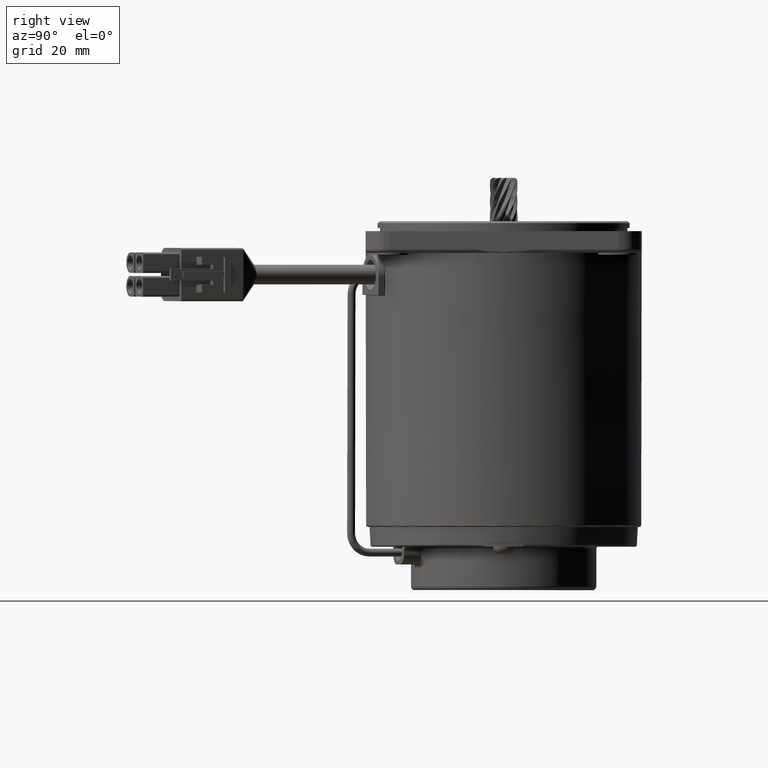
[diagram: clean part render]
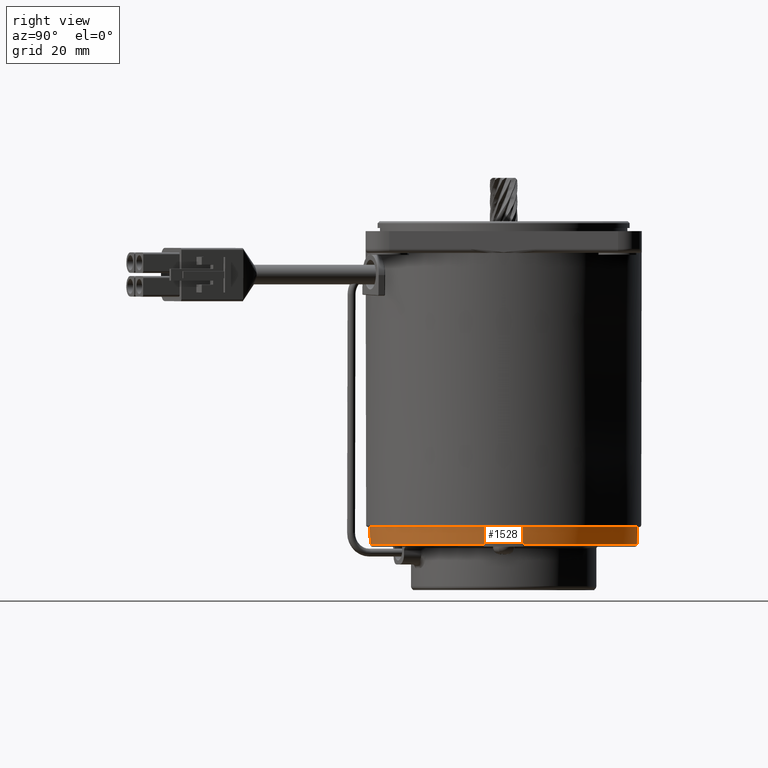
[diagram: same view with one face highlighted and labeled with its STEP entity id]
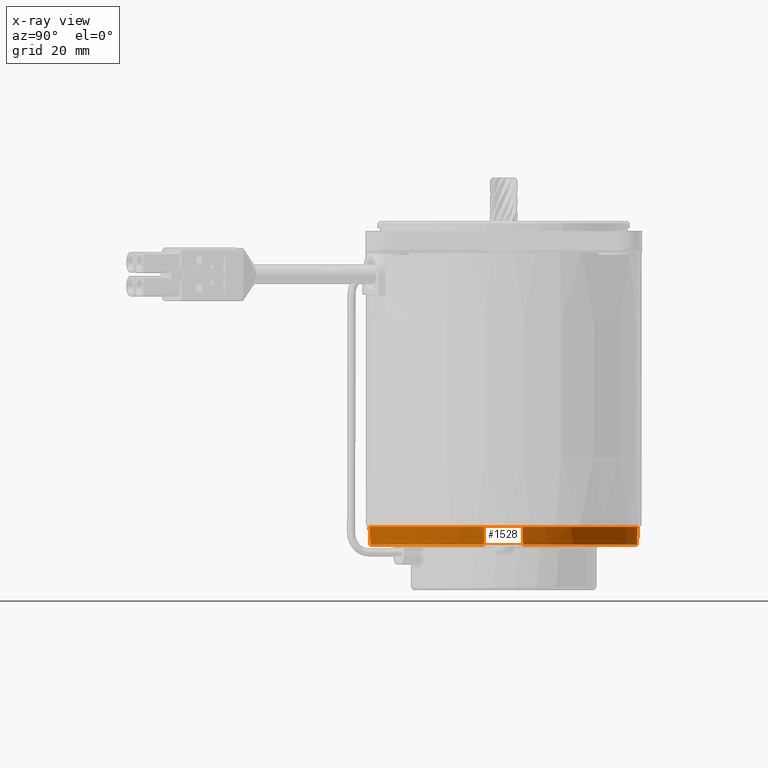
[diagram: x-ray of the same camera — body ghosted, the highlighted face saturated]
A machine part, right view. The second image highlights one B-rep face of the part: STEP entity #1528.
The next image is the same camera in x-ray: the body ghosted, the highlighted face saturated — about 0% of this face is hidden behind the body in this view.
In plain terms, the highlighted conical surface has half-angle 2.862 deg.
Its self-contained STEP definition (entity closure, byte-faithful):
#657 = VERTEX_POINT ( 'NONE', #7725 ) ;
#936 = VERTEX_POINT ( 'NONE', #8903 ) ;
#983 = EDGE_CURVE ( 'NONE', #984, #657, #9028, .T. ) ;
#984 = VERTEX_POINT ( 'NONE', #9029 ) ;
#999 = VERTEX_POINT ( 'NONE', #9046 ) ;
#1000 = EDGE_CURVE ( 'NONE', #936, #1002, #9043, .T. ) ;
#1002 = VERTEX_POINT ( 'NONE', #9024 ) ;
#1005 = EDGE_CURVE ( 'NONE', #657, #999, #9048, .T. ) ;
#1412 = EDGE_CURVE ( 'NONE', #1424, #1433, #9983, .T. ) ;
#1419 = EDGE_CURVE ( 'NONE', #936, #1424, #10020, .T. ) ;
#1424 = VERTEX_POINT ( 'NONE', #10014 ) ;
#1433 = VERTEX_POINT ( 'NONE', #9973 ) ;
#1466 = VERTEX_POINT ( 'NONE', #10051 ) ;
#1470 = EDGE_CURVE ( 'NONE', #1466, #984, #10041, .T. ) ;
#1503 = ORIENTED_EDGE ( 'NONE', *, *, #1005, .T. ) ;
#1507 = ORIENTED_EDGE ( 'NONE', *, *, #983, .T. ) ;
#1508 = EDGE_CURVE ( 'NONE', #1002, #999, #10126, .T. ) ;
#1510 = ORIENTED_EDGE ( 'NONE', *, *, #1508, .F. ) ;
#1516 = ORIENTED_EDGE ( 'NONE', *, *, #1470, .T. ) ;
#1518 = EDGE_LOOP ( 'NONE', ( #1530, #1522, #1529, #1521, #1516, #1507, #1503, #1510 ) ) ;
#1519 = EDGE_CURVE ( 'NONE', #1433, #1466, #10172, .T. ) ;
#1521 = ORIENTED_EDGE ( 'NONE', *, *, #1519, .T. ) ;
#1522 = ORIENTED_EDGE ( 'NONE', *, *, #1419, .T. ) ;
#1528 = ADVANCED_FACE ( 'NONE', ( #10111 ), #10170, .T. ) ;
#1529 = ORIENTED_EDGE ( 'NONE', *, *, #1412, .T. ) ;
#1530 = ORIENTED_EDGE ( 'NONE', *, *, #1000, .F. ) ;
#7725 = CARTESIAN_POINT ( 'NONE',  ( 33.77375155957640400, 0.0000000000000000000, -80.02496880847192500 ) ) ;
#8903 = CARTESIAN_POINT ( 'NONE',  ( -33.77375155957640400, 4.149945395682156800E-015, -80.02496880847192500 ) ) ;
#8999 = AXIS2_PLACEMENT_3D ( 'NONE', #9034, #9027, #9026 ) ;
#9024 = CARTESIAN_POINT ( 'NONE',  ( -33.99999999999997200, 4.163799117100998200E-015, -75.49999999999998600 ) ) ;
#9026 = DIRECTION ( 'NONE',  ( 1.000000000000000000, 0.0000000000000000000, 0.0000000000000000000 ) ) ;
#9027 = DIRECTION ( 'NONE',  ( -0.0000000000000000000, -0.0000000000000000000, 1.000000000000000000 ) ) ;
#9028 = CIRCLE ( 'NONE', #8999, 33.77375155957640400 ) ;
#9029 = CARTESIAN_POINT ( 'NONE',  ( 4.999999999999996400, -33.40159119574978100, -80.02496880847192500 ) ) ;
#9034 = CARTESIAN_POINT ( 'NONE',  ( 0.0000000000000000000, 0.0000000000000000000, -80.02496880847192500 ) ) ;
#9042 = CARTESIAN_POINT ( 'NONE',  ( -33.77375155957640400, 4.136091674263316900E-015, -80.02496880847192500 ) ) ;
#9043 = LINE ( 'NONE', #9042, #9097 ) ;
#9046 = CARTESIAN_POINT ( 'NONE',  ( 33.99999999999997200, 0.0000000000000000000, -75.49999999999998600 ) ) ;
#9047 = CARTESIAN_POINT ( 'NONE',  ( 33.77375155957640400, 0.0000000000000000000, -80.02496880847192500 ) ) ;
#9048 = LINE ( 'NONE', #9047, #9090 ) ;
#9089 = DIRECTION ( 'NONE',  ( 0.04993761694388643100, 0.0000000000000000000, 0.9987523388778449800 ) ) ;
#9090 = VECTOR ( 'NONE', #9089, 1000.000000000000000 ) ;
#9096 = DIRECTION ( 'NONE',  ( -0.04993761694388643100, 6.115594274737715200E-018, 0.9987523388778449800 ) ) ;
#9097 = VECTOR ( 'NONE', #9096, 1000.000000000000000 ) ;
#9973 = CARTESIAN_POINT ( 'NONE',  ( -5.000000000000003600, -33.42813186524188800, -79.49999999999998600 ) ) ;
#9974 = CARTESIAN_POINT ( 'NONE',  ( -5.000000000000003600, -33.42813186524188800, -79.49999999999998600 ) ) ;
#9975 = CARTESIAN_POINT ( 'NONE',  ( -5.000000000000003600, -33.42355681890315800, -79.59049423213049600 ) ) ;
#9976 = CARTESIAN_POINT ( 'NONE',  ( -5.000000000000003600, -33.41898175206375800, -79.68098846322458000 ) ) ;
#9977 = CARTESIAN_POINT ( 'NONE',  ( -5.000000000000003600, -33.41440666469841900, -79.77148269328093000 ) ) ;
#9978 = CARTESIAN_POINT ( 'NONE',  ( -5.000000000000003600, -33.41013485961722300, -79.85597806591630400 ) ) ;
#9979 = CARTESIAN_POINT ( 'NONE',  ( -5.000000000000003600, -33.40586303664121500, -79.94047343764700000 ) ) ;
#9980 = CARTESIAN_POINT ( 'NONE',  ( -5.000000000000003600, -33.40159119574978100, -80.02496880847192500 ) ) ;
#9983 = B_SPLINE_CURVE_WITH_KNOTS ( 'NONE', 3,
 ( #9980, #9979, #9978, #9977, #9976, #9975, #9974 ),
 .UNSPECIFIED., .F., .F.,
 ( 4, 3, 4 ),
 ( 0.01085364399420514500, 0.01110745385775172500, 0.01137928327829844700 ),
 .UNSPECIFIED. ) ;
#10014 = CARTESIAN_POINT ( 'NONE',  ( -5.000000000000003600, -33.40159119574978100, -80.02496880847192500 ) ) ;
#10015 = DIRECTION ( 'NONE',  ( 1.000000000000000000, 0.0000000000000000000, 0.0000000000000000000 ) ) ;
#10016 = DIRECTION ( 'NONE',  ( -0.0000000000000000000, -0.0000000000000000000, 1.000000000000000000 ) ) ;
#10017 = CARTESIAN_POINT ( 'NONE',  ( 0.0000000000000000000, 0.0000000000000000000, -80.02496880847192500 ) ) ;
#10018 = AXIS2_PLACEMENT_3D ( 'NONE', #10017, #10016, #10015 ) ;
#10020 = CIRCLE ( 'NONE', #10018, 33.77375155957640400 ) ;
#10041 = B_SPLINE_CURVE_WITH_KNOTS ( 'NONE', 3,
 ( #10101, #10100, #10099, #10098, #10097, #10096, #10095 ),
 .UNSPECIFIED., .F., .F.,
 ( 4, 3, 4 ),
 ( 0.01083562443717219100, 0.01110745385771969700, 0.01136126372126701000 ),
 .UNSPECIFIED. ) ;
#10051 = CARTESIAN_POINT ( 'NONE',  ( 4.999999999999996400, -33.42813186524188800, -79.49999999999998600 ) ) ;
#10081 = AXIS2_PLACEMENT_3D ( 'NONE', #10166, #10165, #10164 ) ;
#10095 = CARTESIAN_POINT ( 'NONE',  ( 4.999999999999996400, -33.40159119574978100, -80.02496880847192500 ) ) ;
#10096 = CARTESIAN_POINT ( 'NONE',  ( 4.999999999999996400, -33.40586303664121500, -79.94047343764700000 ) ) ;
#10097 = CARTESIAN_POINT ( 'NONE',  ( 4.999999999999996400, -33.41013485961722300, -79.85597806591630400 ) ) ;
#10098 = CARTESIAN_POINT ( 'NONE',  ( 4.999999999999996400, -33.41440666469841900, -79.77148269328093000 ) ) ;
#10099 = CARTESIAN_POINT ( 'NONE',  ( 4.999999999999996400, -33.41898175206375800, -79.68098846322458000 ) ) ;
#10100 = CARTESIAN_POINT ( 'NONE',  ( 4.999999999999996400, -33.42355681890315800, -79.59049423213049600 ) ) ;
#10101 = CARTESIAN_POINT ( 'NONE',  ( 4.999999999999996400, -33.42813186524188800, -79.49999999999998600 ) ) ;
#10111 = FACE_OUTER_BOUND ( 'NONE', #1518, .T. ) ;
#10112 = AXIS2_PLACEMENT_3D ( 'NONE', #10163, #10162, #10159 ) ;
#10121 = DIRECTION ( 'NONE',  ( 1.000000000000000000, 0.0000000000000000000, 0.0000000000000000000 ) ) ;
#10122 = DIRECTION ( 'NONE',  ( -0.0000000000000000000, -0.0000000000000000000, 1.000000000000000000 ) ) ;
#10123 = CARTESIAN_POINT ( 'NONE',  ( 0.0000000000000000000, 0.0000000000000000000, -75.49999999999998600 ) ) ;
#10124 = AXIS2_PLACEMENT_3D ( 'NONE', #10123, #10122, #10121 ) ;
#10126 = CIRCLE ( 'NONE', #10124, 33.99999999999997200 ) ;
#10159 = DIRECTION ( 'NONE',  ( 1.000000000000000000, 0.0000000000000000000, 0.0000000000000000000 ) ) ;
#10162 = DIRECTION ( 'NONE',  ( -0.0000000000000000000, -0.0000000000000000000, 1.000000000000000000 ) ) ;
#10163 = CARTESIAN_POINT ( 'NONE',  ( 0.0000000000000000000, 0.0000000000000000000, -80.02496880847192500 ) ) ;
#10164 = DIRECTION ( 'NONE',  ( 1.000000000000000000, 0.0000000000000000000, 0.0000000000000000000 ) ) ;
#10165 = DIRECTION ( 'NONE',  ( 0.0000000000000000000, -0.0000000000000000000, 1.000000000000000000 ) ) ;
#10166 = CARTESIAN_POINT ( 'NONE',  ( 0.0000000000000000000, 0.0000000000000000000, -79.49999999999998600 ) ) ;
#10170 = CONICAL_SURFACE ( 'NONE', #10112, 33.77375155957640400, 0.04995839572193695000 ) ;
#10172 = CIRCLE ( 'NONE', #10081, 33.79999999999999700 ) ;